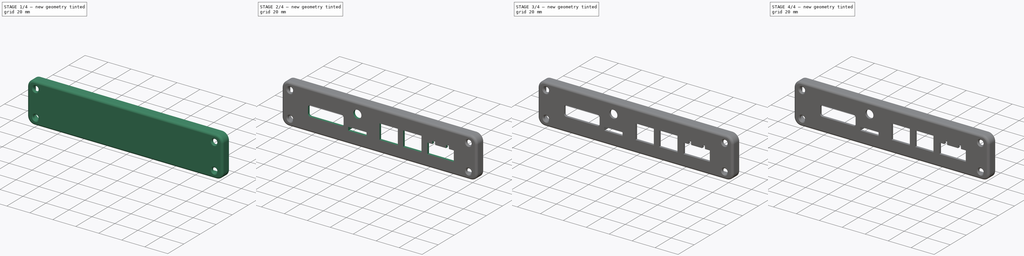
[diagram: build sequence overview — one tinted view per stage of 4, left to right]
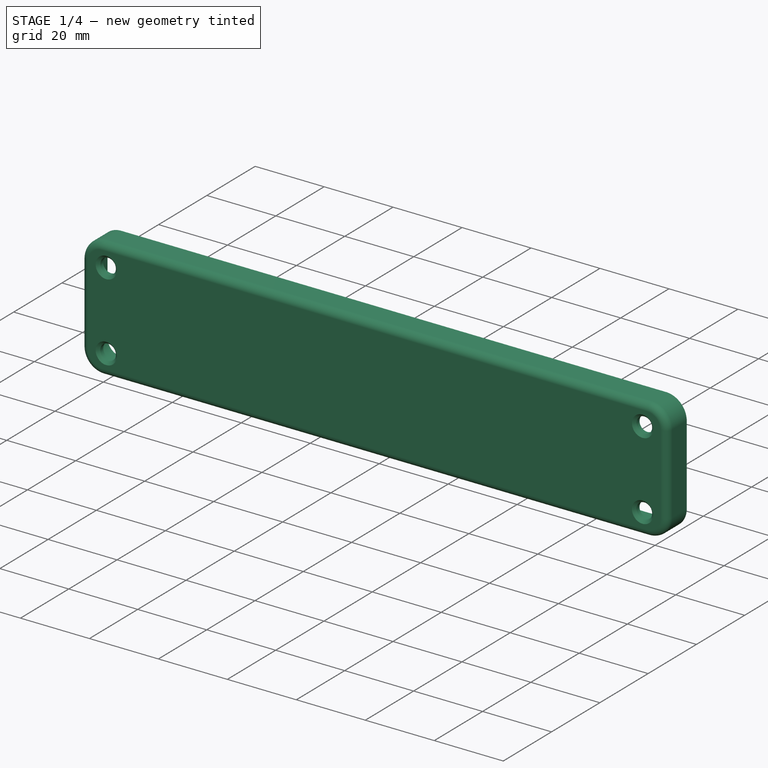
[diagram: stage 1 of 4 — iso view after this stage's code; geometry added in this stage tinted green]
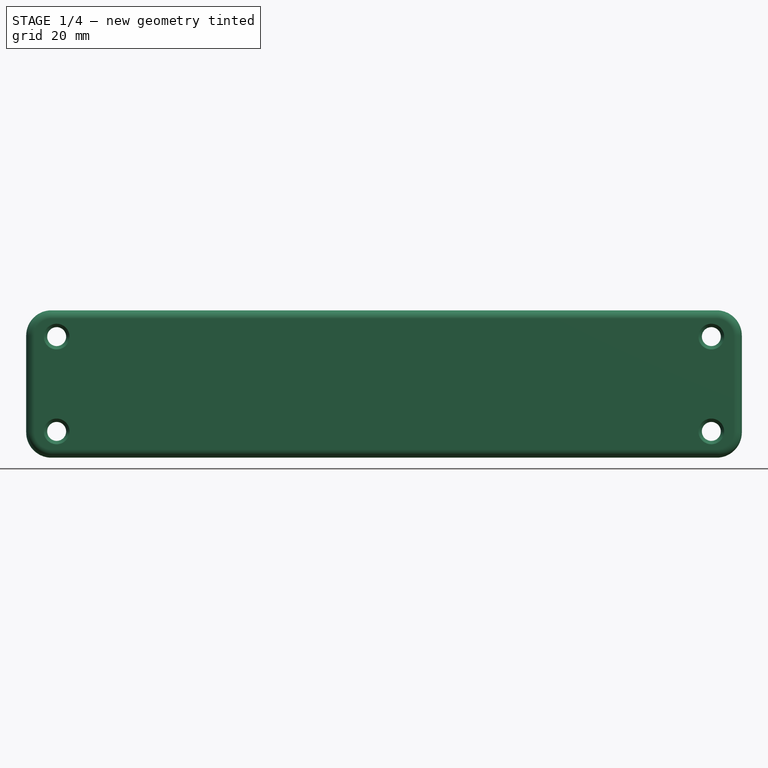
[diagram: stage 1 of 4 — front view after this stage's code; geometry added in this stage tinted green]
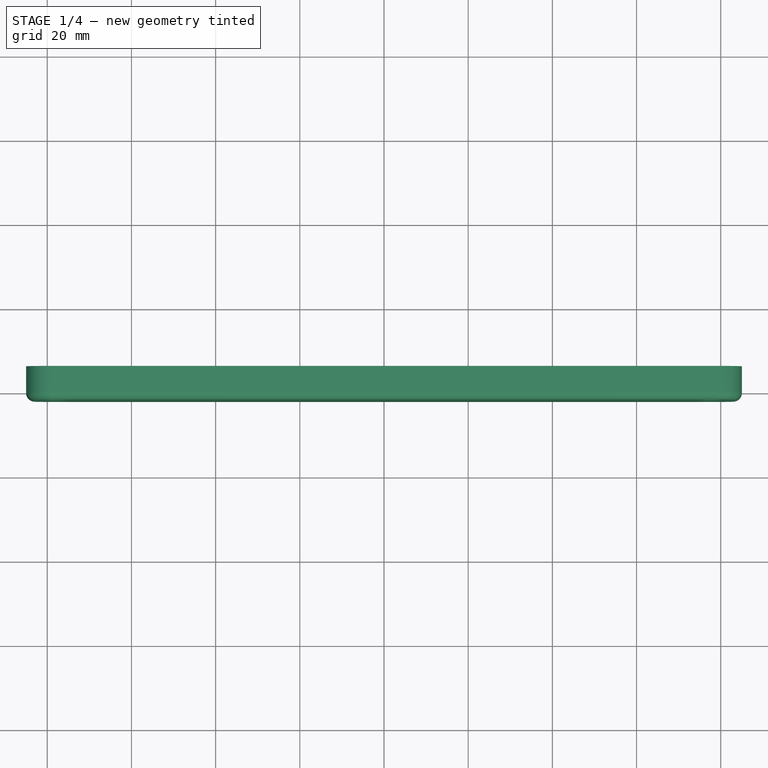
[diagram: stage 1 of 4 — top view after this stage's code; geometry added in this stage tinted green]
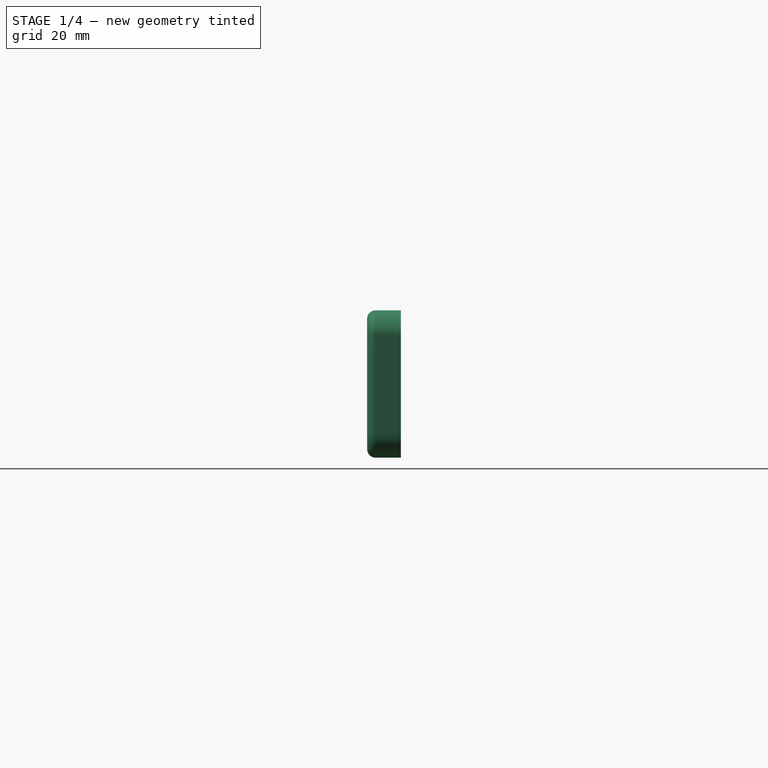
[diagram: stage 1 of 4 — right view after this stage's code; geometry added in this stage tinted green]
FCSTD DOCUMENT  (FreeCAD 0.21R33771 (Git))
Label: Hammond_160mm_Extrusion_Rear_Panel
License: All rights reserved
LicenseURL: http://en.wikipedia.org/wiki/All_rights_reserved
objects: PartDesign::Pocket×7, Part::Part2DObjectPython×6, Sketcher::SketchObject×4, PartDesign::Pad×2, PartDesign::Thickness×1, PartDesign::Hole×1, PartDesign::Body×1
note: 33 computed .brp shape members not serialized (recipe doc carries the construction recipe); baked Part::Feature solids carry a one-line shape summary decoded from their .brp

FEATURE [Sketcher::SketchObject] Sketch  label="EndPanelSketch"
  FullyConstrained = true
  MapMode = 5
  Placement = pos=(0,0,0) rot=(1,0,0;1.5708rad)
  Support = -> [XZ_Plane]
  sketch-geometry (10):
    g0: ArcOfCircle CenterX=-79 CenterY=11.5 CenterZ=0 NormalX=0 NormalY=0 NormalZ=1 AngleXU=0 Radius=4 StartAngle=1.5708 EndAngle=3.14159
    g1: LineSegment StartX=-79 StartY=15.5 StartZ=0 EndX=79 EndY=15.5 EndZ=0
    g2: ArcOfCircle CenterX=79 CenterY=11.5 CenterZ=0 NormalX=0 NormalY=0 NormalZ=1 AngleXU=0 Radius=4 StartAngle=0 EndAngle=1.5708
    g3: LineSegment StartX=83 StartY=11.5 StartZ=0 EndX=83 EndY=-11.5 EndZ=0
    g4: ArcOfCircle CenterX=79 CenterY=-11.5 CenterZ=0 NormalX=0 NormalY=0 NormalZ=1 AngleXU=0 Radius=4 StartAngle=4.71239 EndAngle=6.28319
    g5: LineSegment StartX=79 StartY=-15.5 StartZ=0 EndX=-79 EndY=-15.5 EndZ=0
    g6: ArcOfCircle CenterX=-79 CenterY=-11.5 CenterZ=0 NormalX=0 NormalY=0 NormalZ=1 AngleXU=0 Radius=4 StartAngle=3.14159 EndAngle=4.71239
    g7: LineSegment StartX=-83 StartY=-11.5 StartZ=0 EndX=-83 EndY=11.5 EndZ=0
    g8: GeomPoint X=-83 Y=15.5 Z=0
    g9: GeomPoint X=83 Y=-15.5 Z=0
  constraints (23):
    c: Tangent(g0,g1) = 1.5708
    c: Tangent(g1,g2) = 1.5708
    c: Tangent(g2,g3) = 1.5708
    c: Tangent(g3,g4) = 1.5708
    c: Tangent(g4,g5) = 1.5708
    c: Tangent(g5,g6) = 1.5708
    c: Tangent(g6,g7) = 1.5708
    c: Tangent(g7,g0) = 1.5708
    c: Horizontal(g1)
    c: Horizontal(g5)
    c: Vertical(g3)
    c: Vertical(g7)
    c: Equal(g0,g2)
    c: Equal(g2,g4)
    c: Equal(g4,g6)
    c: PointOnObject(g8,g1)
    c: PointOnObject(g8,g7)
    c: PointOnObject(g9,g3)
    c: PointOnObject(g9,g5)
    c: Symmetric(g4,g0,g-1)
    c: DistanceX(g0,g2) = 166
    c: DistanceY(g5,g0) = 31
    c: Radius(g0) = 4
FEATURE [PartDesign::Pad] Pad  label="EndPanelPad"
  Direction = (0,-1,-2e-16)
  Length = 6
  Length2 = 10
  Placement = pos=(0,0,0) rot=(1,0,0;1.5708rad)
  Profile = -> Sketch
  ReferenceAxis = -> Sketch [N_Axis]
  Reversed = true
  Type = 0
FEATURE [PartDesign::Thickness] Thickness
  Base = -> Pad [Face10]
  BaseFeature = -> Pad
  Intersection = false
  Join = 0
  Mode = 0
  SupportTransform = false
  Value = 2
FEATURE [Sketcher::SketchObject] Sketch001  label="ConnectorHoleSketch"
  FullyConstrained = false
  MapMode = 5
  Placement = pos=(0,-2,-4e-16) rot=(1,0,0;1.5708rad)
  Support = -> [Thickness]
  sketch-geometry (36):
    g0: LineSegment StartX=-54.6832 StartY=-7 StartZ=0 EndX=64.4982 EndY=-7 EndZ=0
    g1: LineSegment StartX=0.25 StartY=-7 StartZ=0 EndX=16.25 EndY=-7 EndZ=0
    g2: LineSegment StartX=16.25 StartY=-7 StartZ=0 EndX=16.25 EndY=6 EndZ=0
    g3: LineSegment StartX=16.25 StartY=6 StartZ=0 EndX=0.25 EndY=6 EndZ=0
    g4: LineSegment StartX=0.25 StartY=6 StartZ=0 EndX=0.25 EndY=-7 EndZ=0
    g5: LineSegment StartX=20.85 StartY=-7 StartZ=0 EndX=36.85 EndY=-7 EndZ=0
    g6: LineSegment StartX=36.85 StartY=-7 StartZ=0 EndX=36.85 EndY=6 EndZ=0
    g7: LineSegment StartX=36.85 StartY=6 StartZ=0 EndX=20.85 EndY=6 EndZ=0
    g8: LineSegment StartX=20.85 StartY=6 StartZ=0 EndX=20.85 EndY=-7 EndZ=0
    g9: LineSegment StartX=42 StartY=-7 StartZ=0 EndX=65 EndY=-7 EndZ=0
    g10: LineSegment StartX=65 StartY=-7 StartZ=0 EndX=65 EndY=2 EndZ=0
    g11: LineSegment StartX=42 StartY=2 StartZ=0 EndX=42 EndY=-7 EndZ=0
    g12: LineSegment StartX=-11 StartY=-7 StartZ=0 EndX=-27 EndY=-7 EndZ=0
    g13: LineSegment StartX=-27 StartY=-7 StartZ=0 EndX=-27 EndY=-4 EndZ=0
    g14: LineSegment StartX=-27 StartY=-4 StartZ=0 EndX=-11 EndY=-4 EndZ=0
    g15: LineSegment StartX=-11 StartY=-4 StartZ=0 EndX=-11 EndY=-7 EndZ=0
    g16: ArcOfCircle CenterX=-32.9983 CenterY=-3 CenterZ=0 NormalX=0 NormalY=0 NormalZ=1 AngleXU=0 Radius=2 StartAngle=4.71239 EndAngle=6.28319
    g17: LineSegment StartX=-32.9983 StartY=-5 StartZ=0 EndX=-59.9983 EndY=-5 EndZ=0
    g18: ArcOfCircle CenterX=-59.9983 CenterY=-3 CenterZ=0 NormalX=0 NormalY=0 NormalZ=1 AngleXU=0 Radius=2 StartAngle=3.14159 EndAngle=4.71239
    g19: LineSegment StartX=-61.9983 StartY=-3 StartZ=0 EndX=-61.9983 EndY=2 EndZ=0
    g20: ArcOfCircle CenterX=-59.9983 CenterY=2 CenterZ=0 NormalX=0 NormalY=0 NormalZ=1 AngleXU=0 Radius=2 StartAngle=1.5708 EndAngle=3.14159
    g21: LineSegment StartX=-59.9983 StartY=4 StartZ=0 EndX=-32.9983 EndY=4 EndZ=0
    g22: ArcOfCircle CenterX=-32.9983 CenterY=2 CenterZ=0 NormalX=0 NormalY=0 NormalZ=1 AngleXU=0 Radius=2 StartAngle=1e-16 EndAngle=1.5708
    g23: LineSegment StartX=-30.9983 StartY=2 StartZ=0 EndX=-30.9983 EndY=-3 EndZ=0
    g24: GeomPoint X=-31 Y=-7 Z=0
    g25: GeomPoint X=-61.9983 Y=4 Z=0
    g26: Circle CenterX=-19 CenterY=8 CenterZ=0 NormalX=0 NormalY=0 NormalZ=1 AngleXU=0 Radius=3.5
    g27: LineSegment StartX=46.25 StartY=2 StartZ=0 EndX=46.25 EndY=4.5 EndZ=0
    g28: LineSegment StartX=46.25 StartY=4.5 StartZ=0 EndX=48.75 EndY=4.5 EndZ=0
    g29: LineSegment StartX=48.75 StartY=4.5 StartZ=0 EndX=48.75 EndY=2 EndZ=0
    g30: LineSegment StartX=58.25 StartY=2 StartZ=0 EndX=58.25 EndY=4.5 EndZ=0
    g31: LineSegment StartX=58.25 StartY=4.5 StartZ=0 EndX=60.75 EndY=4.5 EndZ=0
    g32: LineSegment StartX=60.75 StartY=4.5 StartZ=0 EndX=60.75 EndY=2 EndZ=0
    g33: LineSegment StartX=42 StartY=2 StartZ=0 EndX=46.25 EndY=2 EndZ=0
    g34: LineSegment StartX=48.75 StartY=2 StartZ=0 EndX=58.25 EndY=2 EndZ=0
    g35: LineSegment StartX=60.75 StartY=2 StartZ=0 EndX=65 EndY=2 EndZ=0
  constraints (98):
    c: Horizontal(g0)
    c: Coincident(g1,g2)
    c: Coincident(g2,g3)
    c: Coincident(g3,g4)
    c: Coincident(g4,g1)
    c: Horizontal(g1)
    c: Horizontal(g3)
    c: Vertical(g2)
    c: Vertical(g4)
    c: DistanceX(g3,g2) = 16
    c: DistanceY(g1,g3) = 13
    c: DistanceY(g1,g-1) = 7
    c: Coincident(g5,g6)
    c: Coincident(g6,g7)
    c: Coincident(g7,g8)
    c: Coincident(g8,g5)
    c: Horizontal(g5)
    c: Horizontal(g7)
    c: Vertical(g6)
    c: Vertical(g8)
    c: PointOnObject(g5,g0)
    c: DistanceX(g5) = 20.85
    c: DistanceX(g7,g6) = 16
    c: DistanceY(g5,g6) = 13
    c: DistanceX(g-1,g1) = 0.25
    c: PointOnObject(g1,g0)
    c: Coincident(g9,g10)
    c: Coincident(g11,g9)
    c: Horizontal(g9)
    c: Vertical(g10)
    c: Vertical(g11)
    c: PointOnObject(g9,g0)
    c: DistanceY(g9,g10) = 9
    c: Coincident(g12,g13)
    c: Coincident(g13,g14)
    c: Coincident(g14,g15)
    c: Coincident(g15,g12)
    c: Horizontal(g12)
    c: Horizontal(g14)
    c: Vertical(g13)
    c: Vertical(g15)
    c: PointOnObject(g12,g0)
    c: DistanceX(g14,g-1) = 11
    c: DistanceX(g13,g14) = 16
    c: DistanceY(g12,g14) = 3
    c: Tangent(g16,g17) = 1.5708
    c: Tangent(g17,g18) = 1.5708
    c: Tangent(g18,g19) = 1.5708
    c: Tangent(g19,g20) = 1.5708
    c: Tangent(g20,g21) = 1.5708
    c: Tangent(g21,g22) = 1.5708
    c: Tangent(g22,g23) = 1.5708
    c: Tangent(g23,g16) = 1.5708
    c: Horizontal(g17)
    c: Horizontal(g21)
    c: Vertical(g19)
    c: Vertical(g23)
    c: Equal(g16,g18)
    c: Equal(g18,g20)
    c: Equal(g20,g22)
    c: PointOnObject(g25,g19)
    c: PointOnObject(g25,g21)
    c: DistanceY(g16,g21) = 9
    c: DistanceX(g19,g22) = 31
    c: Diameter(g26) = 7
    c: DistanceX(g26,g-1) = 19
    c: DistanceY(g0,g16) = 2
    c: Radius(g16) = 2
    c: DistanceY(g-1,g26) = 8
    c: DistanceX(g11,g10) = 23
    c: DistanceX(g-1,g11) = 42
    c: Vertical(g27)
    c: Coincident(g28,g27)
    c: Horizontal(g28)
    c: Coincident(g29,g28)
    c: Vertical(g29)
    c: DistanceX(g11,g27) = 4.25
    c: DistanceX(g27,g28) = 2.5
    c: DistanceY(g27,g27) = 2.5
    c: Vertical(g30)
    c: Coincident(g31,g30)
    c: Horizontal(g31)
    c: Coincident(g32,g31)
    c: Vertical(g32)
    c: Equal(g31,g28)
    c: Equal(g32,g27)
    c: DistanceX(g31,g10) = 4.25
    c: Coincident(g33,g11)
    c: Coincident(g33,g27)
    c: Horizontal(g33)
    c: Coincident(g34,g29)
    c: Coincident(g34,g30)
    c: Horizontal(g34)
    c: Coincident(g35,g32)
    c: Coincident(g35,g10)
    c: Horizontal(g35)
    c: Equal(g27,g30)
    c: Equal(g32,g29)
FEATURE [Sketcher::SketchObject] Sketch002  label="EndPanelHoleSketch"
  FullyConstrained = false
  MapMode = 5
  Placement = pos=(0,-2,-4e-16) rot=(1,0,0;1.5708rad)
  Support = -> [Thickness]
  sketch-geometry (8):
    g0: Circle CenterX=-77.76 CenterY=11.26 CenterZ=0 NormalX=0 NormalY=0 NormalZ=1 AngleXU=0 Radius=2.25
    g1: Circle CenterX=77.76 CenterY=11.26 CenterZ=0 NormalX=0 NormalY=0 NormalZ=1 AngleXU=0 Radius=2.25
    g2: LineSegment StartX=-77.76 StartY=11.26 StartZ=0 EndX=77.7549 EndY=11.26 EndZ=0
    g3: LineSegment StartX=77.7549 StartY=11.26 StartZ=0 EndX=77.7549 EndY=-11.26 EndZ=0
    g4: LineSegment StartX=77.7549 StartY=-11.26 StartZ=0 EndX=-77.76 EndY=-11.26 EndZ=0
    g5: LineSegment StartX=-77.76 StartY=-11.26 StartZ=0 EndX=-77.76 EndY=11.26 EndZ=0
    g6: Circle CenterX=-77.76 CenterY=-11.26 CenterZ=0 NormalX=0 NormalY=0 NormalZ=1 AngleXU=0 Radius=2.25
    g7: Circle CenterX=77.7549 CenterY=-11.26 CenterZ=0 NormalX=0 NormalY=0 NormalZ=1 AngleXU=0 Radius=2.25
  constraints (18):
    c: DistanceX(g0,g1) = 155.52
    c: Symmetric(g0,g1,g-2)
    c: Coincident(g2,g3)
    c: Coincident(g3,g4)
    c: Coincident(g4,g5)
    c: Coincident(g5,g2)
    c: Horizontal(g2)
    c: Horizontal(g4)
    c: Vertical(g3)
    c: Coincident(g2,g0)
    c: DistanceY(g4,g0) = 22.52
    c: Symmetric(g0,g4,g-1)
    c: Coincident(g6,g4)
    c: Coincident(g7,g3)
    c: Equal(g0,g6)
    c: Equal(g6,g7)
    c: Equal(g7,g1)
    c: Diameter(g0) = 4.5
FEATURE [PartDesign::Hole] Hole  label="EndPanelHoles"
  BaseFeature = -> Thickness
  CustomThreadClearance = 0
  Depth = 2
  DepthType = 0
  Diameter = 4.5
  DrillForDepth = false
  DrillPoint = 1
  DrillPointAngle = 118
  HoleCutCountersinkAngle = 90
  HoleCutCustomValues = false
  HoleCutDepth = 0
  HoleCutDiameter = 6.1
  HoleCutType = 2
  ModelThread = false
  Profile = -> Sketch002
  Tapered = false
  TaperedAngle = 90
  ThreadClass = 0
  ThreadDepth = 2
  ThreadDepthType = 0
  ThreadDirection = 0
  ThreadFit = 0
  ThreadSize = 11
  ThreadType = 1
  Threaded = false
  UseCustomThreadClearance = false
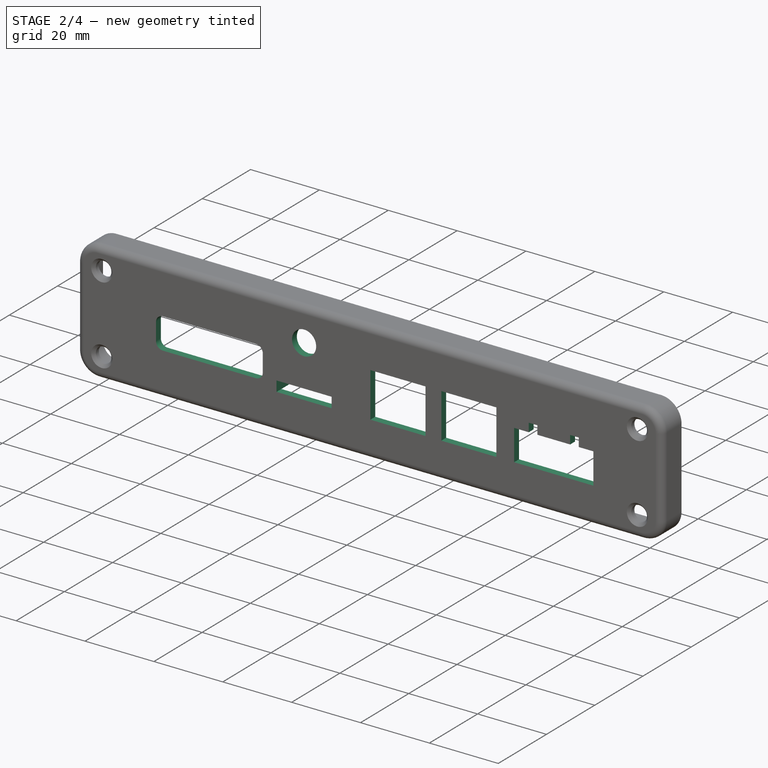
[diagram: stage 2 of 4 — iso view after this stage's code; geometry added in this stage tinted green]
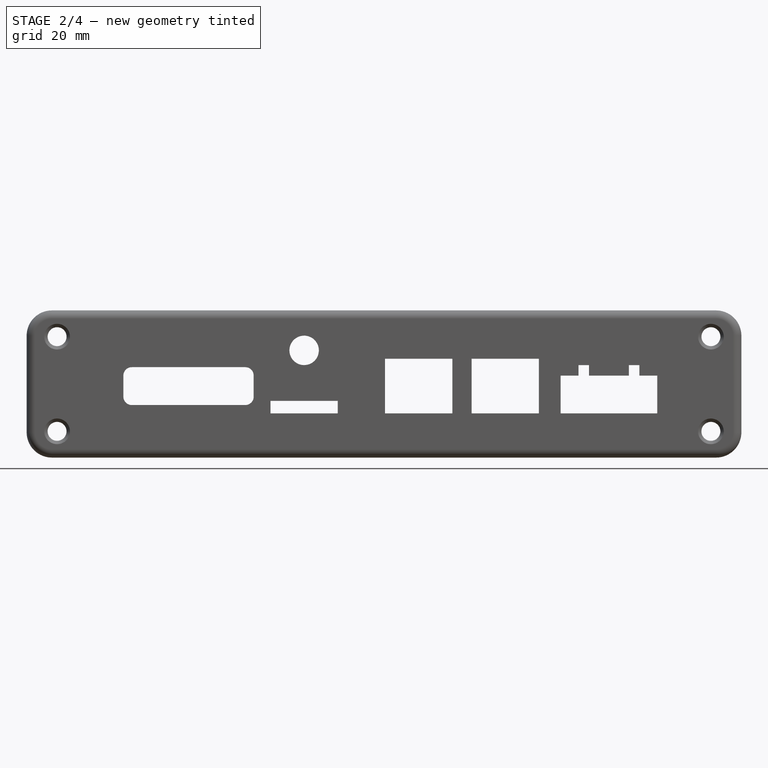
[diagram: stage 2 of 4 — front view after this stage's code; geometry added in this stage tinted green]
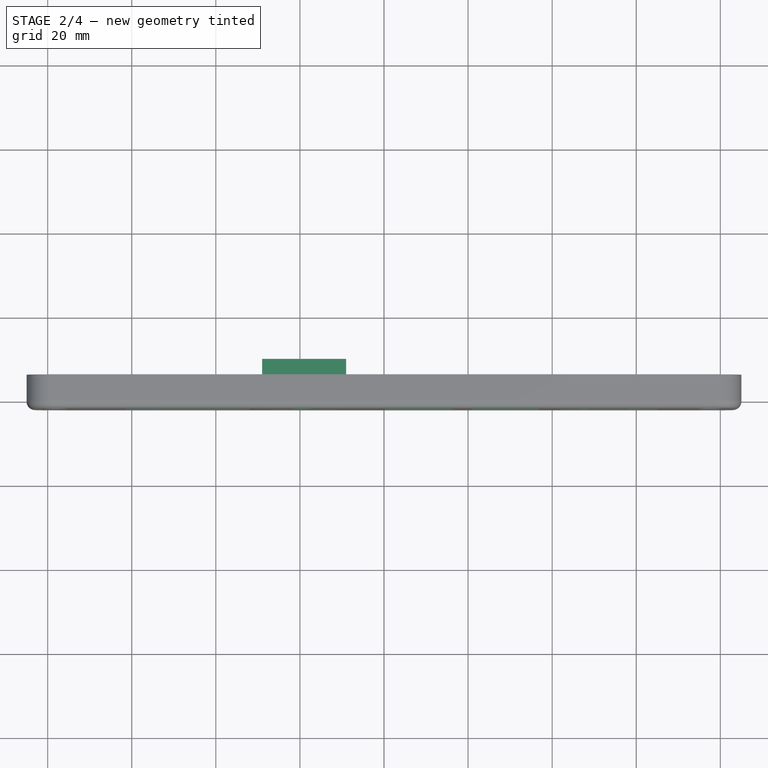
[diagram: stage 2 of 4 — top view after this stage's code; geometry added in this stage tinted green]
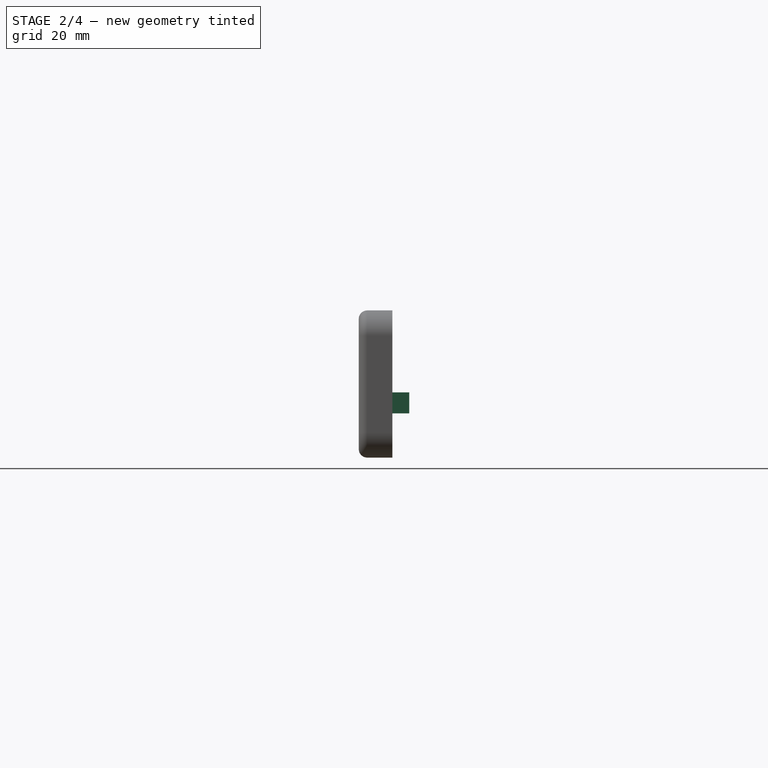
[diagram: stage 2 of 4 — right view after this stage's code; geometry added in this stage tinted green]
FEATURE [PartDesign::Pocket] Pocket  label="ConnectorHolesPocket"
  BaseFeature = -> Hole
  Direction = (0,1,2e-16)
  Length = 5
  Length2 = 5
  Profile = -> Sketch001
  ReferenceAxis = -> Sketch001 [N_Axis]
  Type = 0
FEATURE [Sketcher::SketchObject] Sketch003  label="TTLUARTShroudSketch"
  ExternalGeometry = -> [Pocket]
  FullyConstrained = true
  MapMode = 5
  Placement = pos=(0,0,0) rot=(1,0,0;1.5708rad)
  Support = -> [XZ_Plane]
  sketch-geometry (8):
    g0: LineSegment StartX=-11 StartY=-7 StartZ=0 EndX=-9 EndY=-7 EndZ=0
    g1: LineSegment StartX=-9 StartY=-7 StartZ=0 EndX=-9 EndY=-2 EndZ=0
    g2: LineSegment StartX=-27 StartY=-7 StartZ=0 EndX=-29 EndY=-7 EndZ=0
    g3: LineSegment StartX=-29 StartY=-7 StartZ=0 EndX=-29 EndY=-2 EndZ=0
    g4: LineSegment StartX=-27 StartY=-7 StartZ=0 EndX=-27 EndY=-4 EndZ=0
    g5: LineSegment StartX=-27 StartY=-4 StartZ=0 EndX=-11 EndY=-4 EndZ=0
    g6: LineSegment StartX=-11 StartY=-4 StartZ=0 EndX=-11 EndY=-7 EndZ=0
    g7: LineSegment StartX=-9 StartY=-2 StartZ=0 EndX=-29 EndY=-2 EndZ=0
  constraints (20):
    c: Coincident(g0,g1)
    c: Horizontal(g0)
    c: Vertical(g1)
    c: Coincident(g0,g-4)
    c: DistanceY(g0,g1) = 5
    c: Coincident(g2,g3)
    c: Horizontal(g2)
    c: Vertical(g3)
    c: Coincident(g2,g-4)
    c: DistanceX(g2,g2) = 2
    c: DistanceY(g2,g3) = 5
    c: Coincident(g4,g2)
    c: Coincident(g4,g-5)
    c: Coincident(g5,g-5)
    c: Coincident(g6,g5)
    c: Coincident(g6,g0)
    c: Coincident(g7,g1)
    c: Coincident(g7,g3)
    c: DistanceX(g3,g7) = 20
    c: Coincident(g4,g5)
FEATURE [PartDesign::Pad] Pad001  label="TTLUARTShroudPad"
  BaseFeature = -> Pocket
  Direction = (0,-1,-2e-16)
  Length = 10
  Length2 = 10
  Profile = -> Sketch003
  ReferenceAxis = -> Sketch003 [N_Axis]
  Reversed = true
  Type = 0
FEATURE [Part::Part2DObjectPython] ShapeString  # Draft 2D object (typed FeaturePython)
  FontFile = <path>
  MakeFace = true
  Placement = pos=(-56,-2,9) rot=(1,2e-06,3e-06;1.5708rad)
  Size = 5
  String = RS-232       GRD CO   STA   POWER
  Tracking = 0
FEATURE [Part::Part2DObjectPython] ShapeString001  # Draft 2D object (typed FeaturePython)
  FontFile = <path>
  MakeFace = true
  Placement = pos=(41,-2,-12.5) rot=(1,2e-06,3e-06;1.5708rad)
  Size = 5
  String = - + G V+
  Tracking = 0
FEATURE [PartDesign::Pocket] Pocket001
  BaseFeature = -> Pad001
  Direction = (-5.01547e-06,1,2.5288e-07)
  Length = 0.4
  Length2 = 5
  Profile = -> ShapeString
  ReferenceAxis = -> ShapeString [N_Axis]
  Type = 0
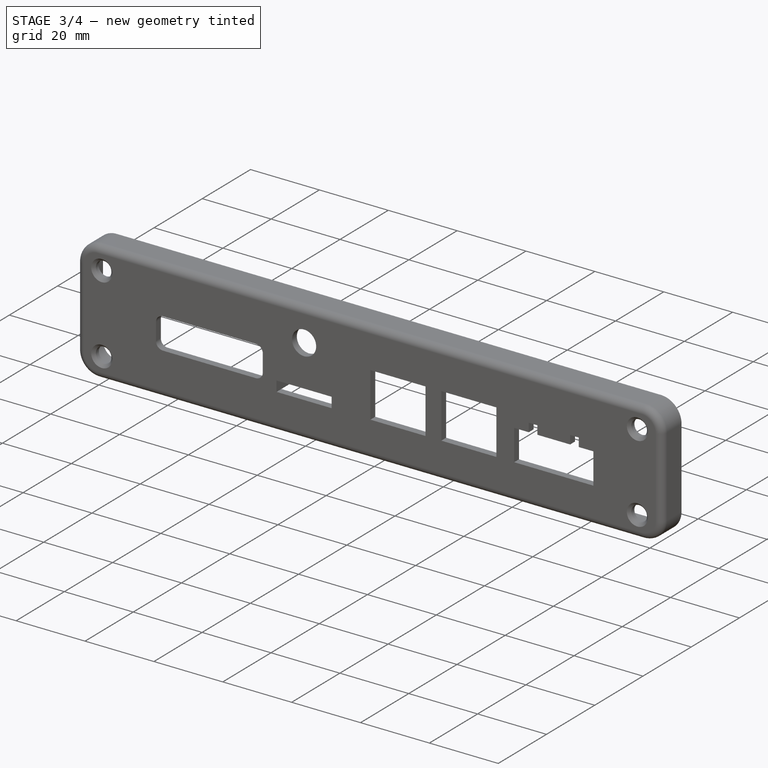
[diagram: stage 3 of 4 — iso view after this stage's code; geometry added in this stage tinted green]
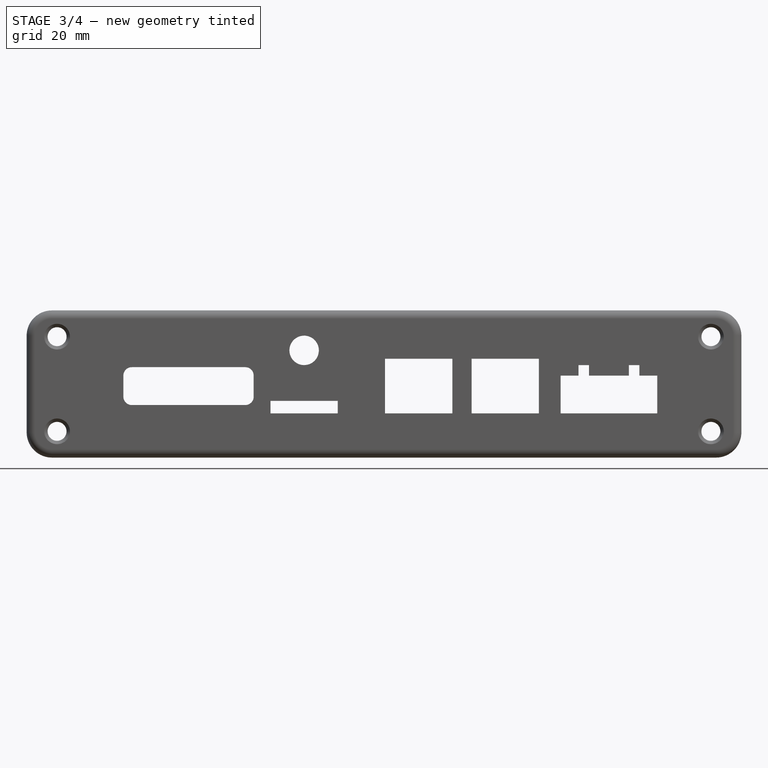
[diagram: stage 3 of 4 — front view after this stage's code; geometry added in this stage tinted green]
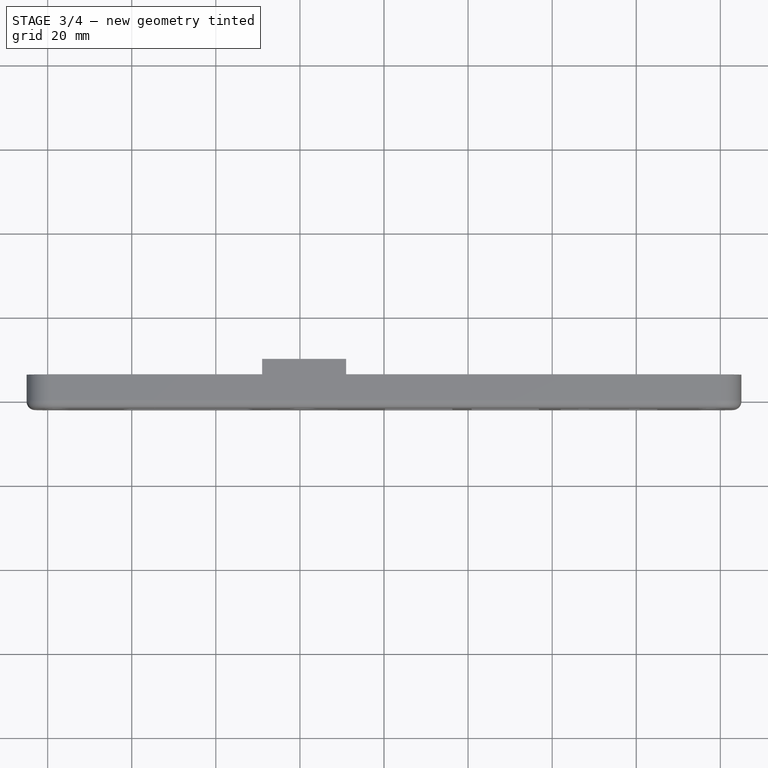
[diagram: stage 3 of 4 — top view after this stage's code; geometry added in this stage tinted green]
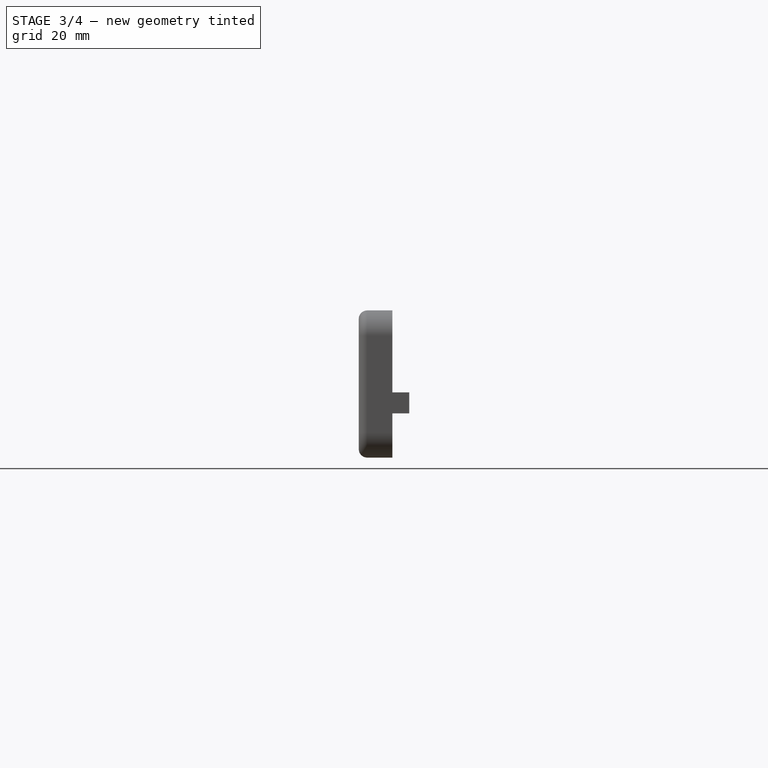
[diagram: stage 3 of 4 — right view after this stage's code; geometry added in this stage tinted green]
FEATURE [Part::Part2DObjectPython] ShapeString002  # Draft 2D object (typed FeaturePython)
  FontFile = <path>
  MakeFace = true
  Placement = pos=(37.2,-2,3) rot=(1,2e-06,3e-06;1.5708rad)
  Size = 4
  String = 130 V|
  Tracking = 0
FEATURE [Part::Part2DObjectPython] ShapeString003  # Draft 2D object (typed FeaturePython)
  FontFile = <path>
  MakeFace = true
  Placement = pos=(-30,-2,-3) rot=(1,2e-06,3e-06;1.5708rad)
  Size = 5
  String = TTL/PROG
  Tracking = 0
FEATURE [Part::Part2DObjectPython] ShapeString004  # Draft 2D object (typed FeaturePython)
  FontFile = <path>
  MakeFace = true
  Placement = pos=(-60,-2,-12.5) rot=(1,2e-06,3e-06;1.5708rad)
  Size = 5
  String = HOST INTERFACE
  Tracking = 0
FEATURE [PartDesign::Pocket] Pocket002
  BaseFeature = -> Pocket001
  Direction = (-5.01547e-06,1,2.5288e-07)
  Length = 0.4
  Length2 = 5
  Profile = -> ShapeString002
  ReferenceAxis = -> ShapeString002 [N_Axis]
  Type = 0
FEATURE [PartDesign::Pocket] Pocket003
  BaseFeature = -> Pocket002
  Direction = (-5.01547e-06,1,2.5288e-07)
  Length = 0.4
  Length2 = 5
  Profile = -> ShapeString001
  ReferenceAxis = -> ShapeString001 [N_Axis]
  Type = 0
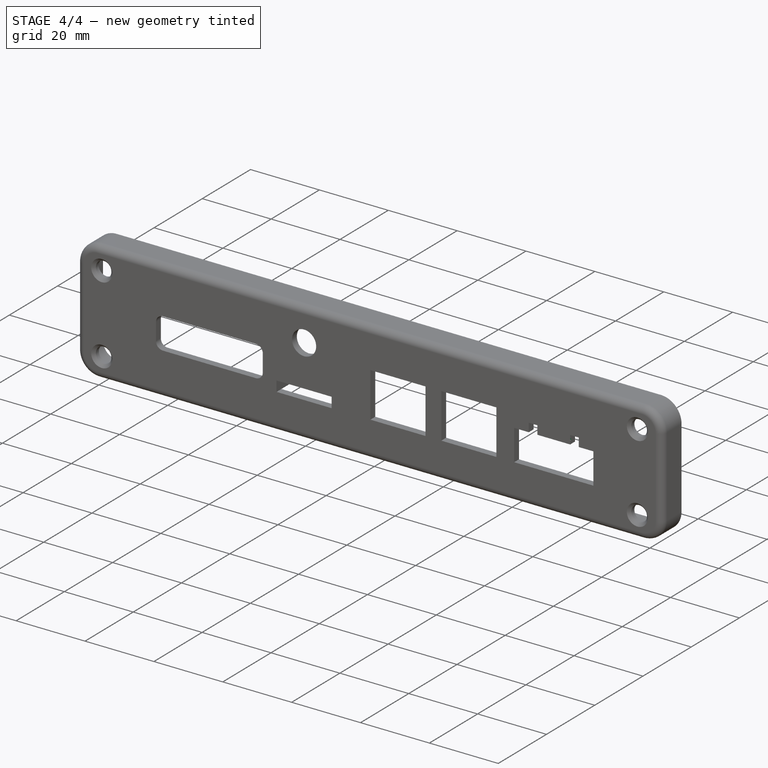
[diagram: stage 4 of 4 — iso view after this stage's code; geometry added in this stage tinted green]
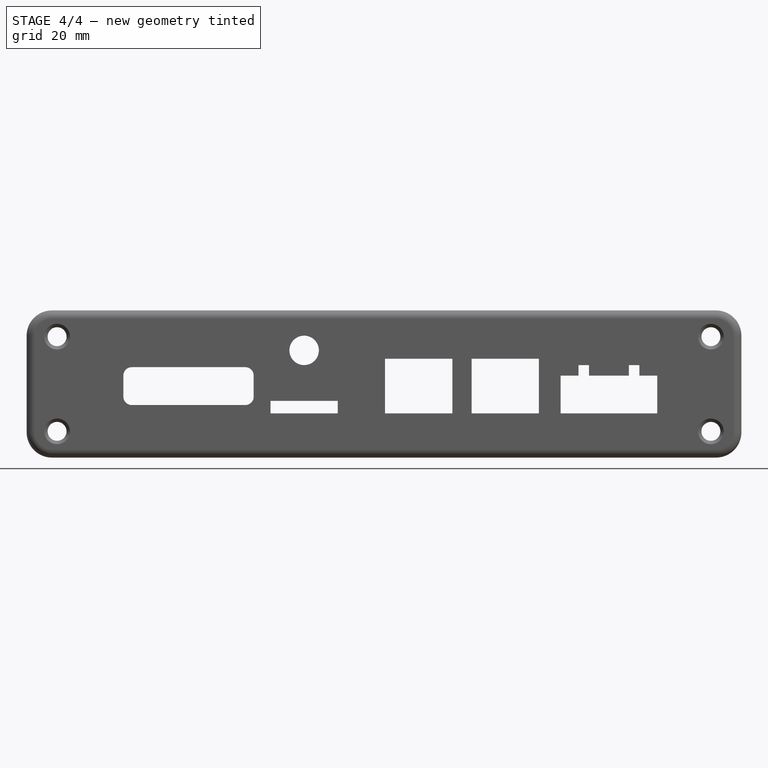
[diagram: stage 4 of 4 — front view after this stage's code; geometry added in this stage tinted green]
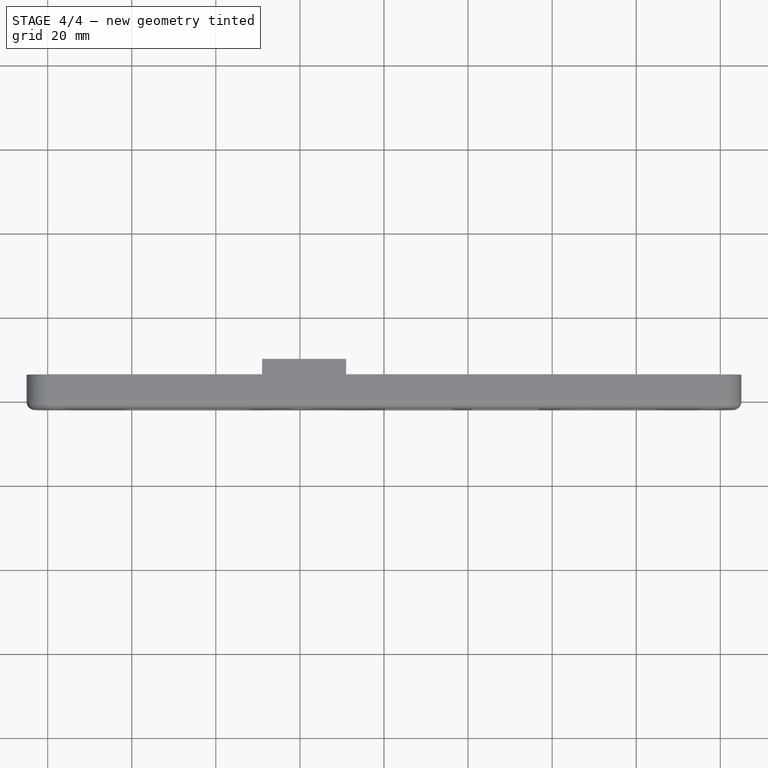
[diagram: stage 4 of 4 — top view after this stage's code; geometry added in this stage tinted green]
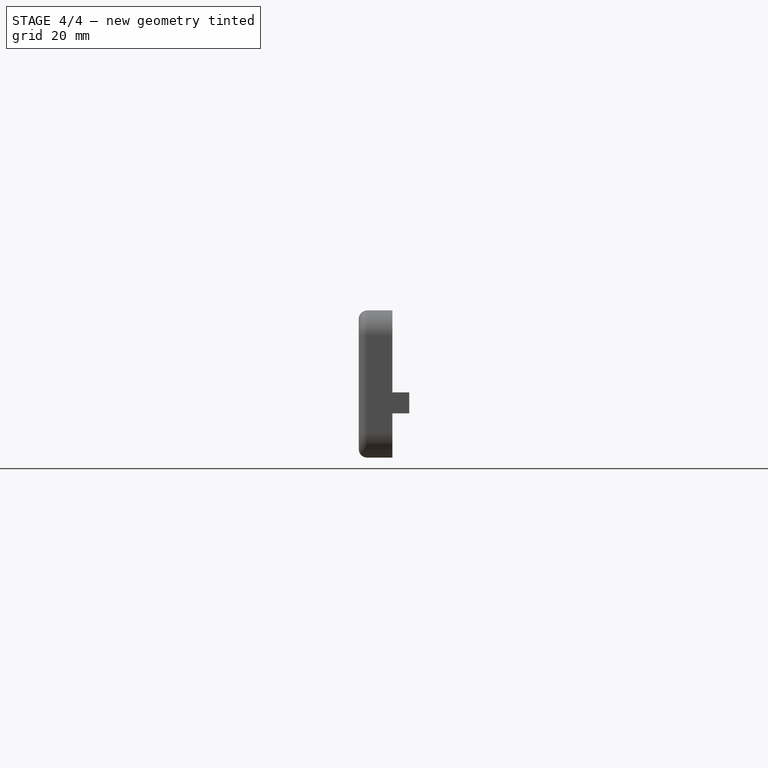
[diagram: stage 4 of 4 — right view after this stage's code; geometry added in this stage tinted green]
FEATURE [PartDesign::Pocket] Pocket004
  BaseFeature = -> Pocket003
  Direction = (-5.01547e-06,1,2.5288e-07)
  Length = 0.4
  Length2 = 5
  Profile = -> ShapeString003
  ReferenceAxis = -> ShapeString003 [N_Axis]
  Type = 0
FEATURE [PartDesign::Pocket] Pocket005
  BaseFeature = -> Pocket004
  Direction = (-5.01547e-06,1,2.5288e-07)
  Length = 0.4
  Length2 = 5
  Profile = -> ShapeString004
  ReferenceAxis = -> ShapeString004 [N_Axis]
  Type = 0
FEATURE [Part::Part2DObjectPython] ShapeString006  # Draft 2D object (typed FeaturePython)
  FontFile = <path>
  MakeFace = true
  Placement = pos=(53,-2,3) rot=(1,2e-06,3e-06;1.5708rad)
  Size = 4
  String = 12 VDC
  Tracking = 0
FEATURE [PartDesign::Pocket] Pocket007
  BaseFeature = -> Pocket005
  Direction = (-5.01547e-06,1,2.5288e-07)
  Length = 0.4
  Length2 = 5
  Profile = -> ShapeString006
  ReferenceAxis = -> ShapeString006 [N_Axis]
  Type = 0
FEATURE [PartDesign::Body] Body
  Group = -> [Sketch,Pad,Thickness,Sketch002,Sketch001,Hole,Pocket,Sketch003,Pad001,ShapeString,Pocket001,ShapeString002,ShapeString001,Pocket002,Pocket003,ShapeString003,Pocket004,ShapeString004,Pocket005,ShapeString006,Pocket007]
  Origin = -> Origin
  Tip = -> Pocket007
note: 6 file-system paths scrubbed to <path> (originals preserved in the JSON sidecar)
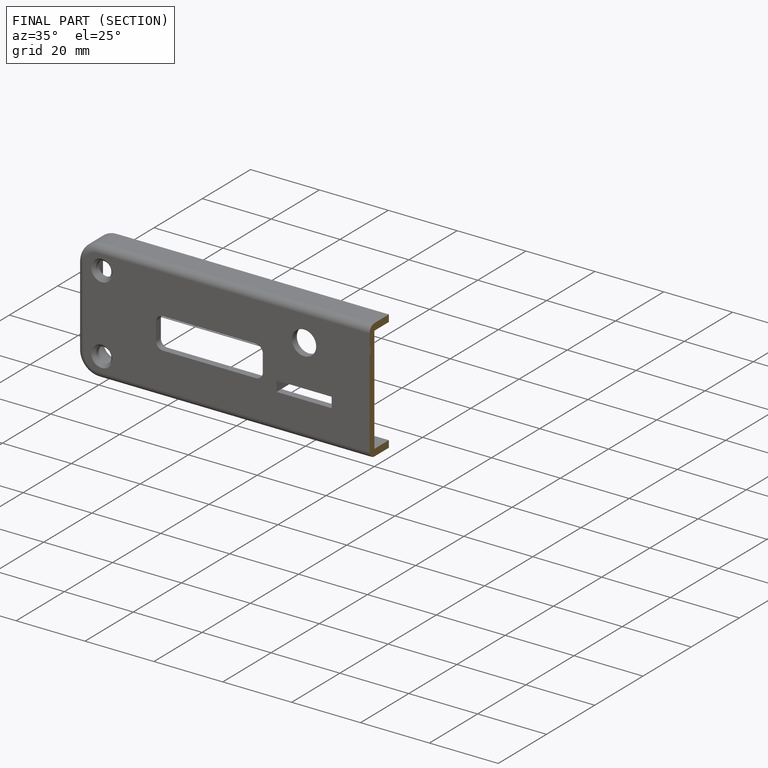
[diagram: finished part — half-section view (interior)]
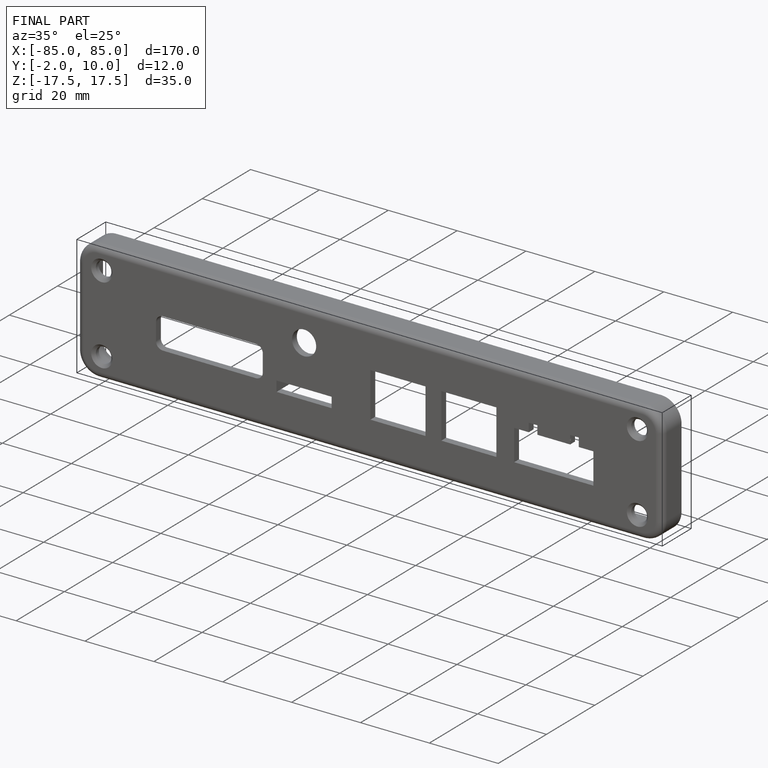
[diagram: finished part — iso view with bounding-box wireframe]
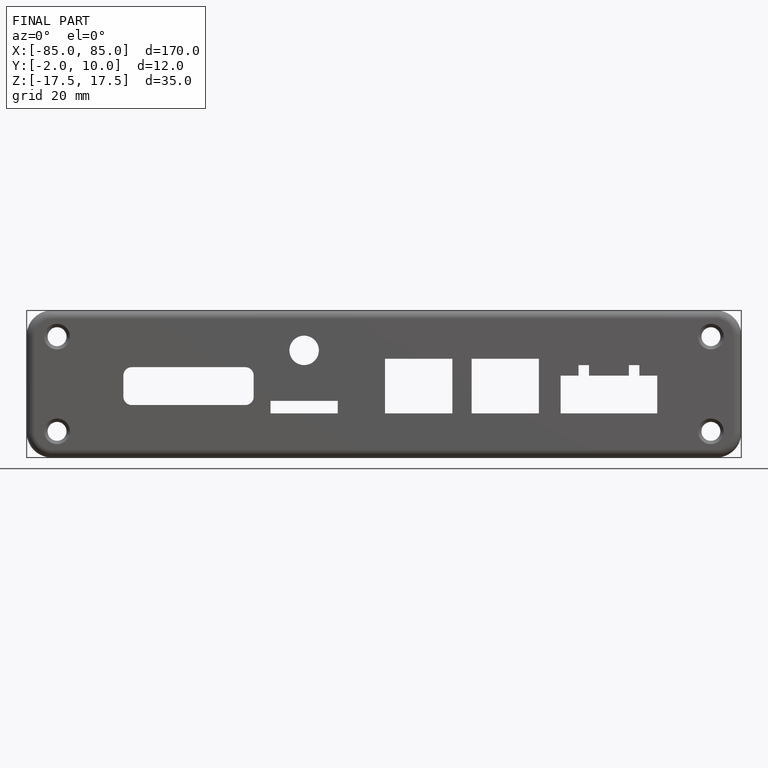
[diagram: finished part — front view with bounding-box wireframe]
